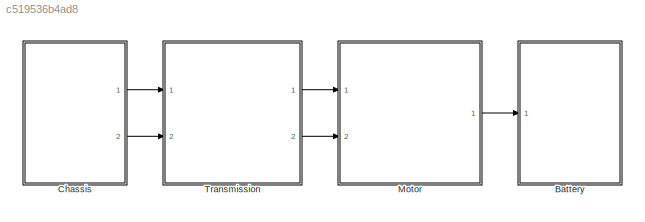
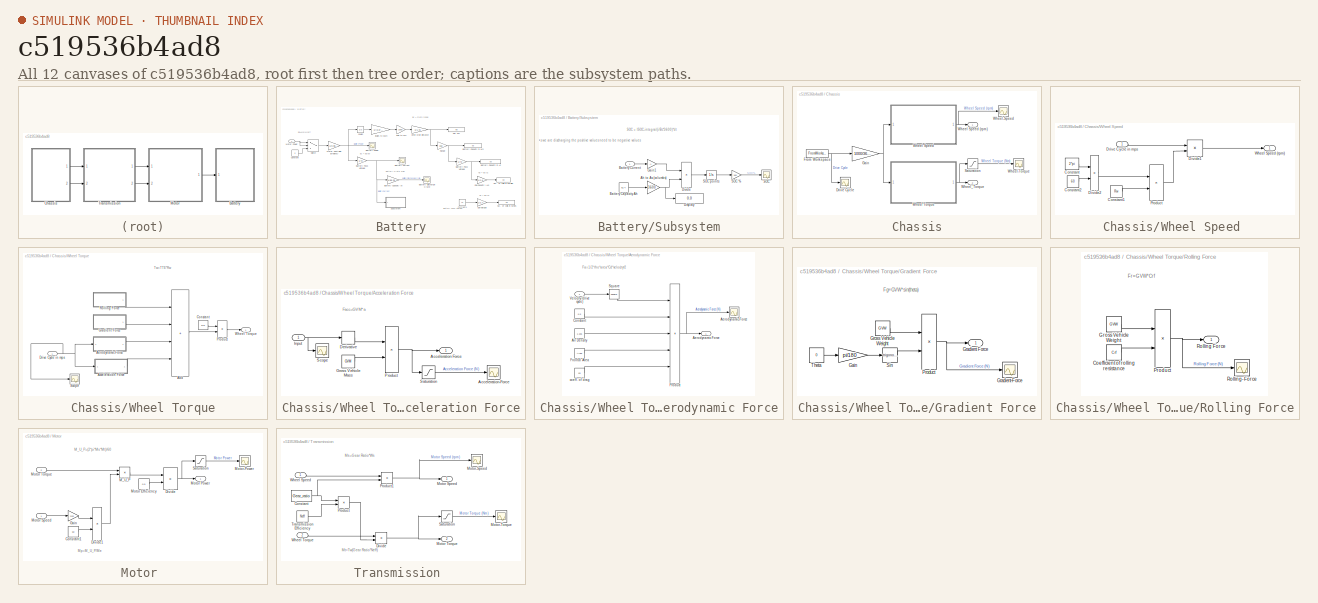
[diagram: thumbnail index - all 12 canvases of the model, root first then tree order]
MODEL slx_c519536b4ad8
KIND model
CONFIG AbsTol = auto
CONFIG EnableMultiTasking = off
CONFIG FixedStep = auto
CONFIG MaxStep = 1e-3
CONFIG MinStep = auto
CONFIG RelTol = 1e-3
CONFIG SampleTimeConstraint = Unconstrained
CONFIG SolverName = ode45
CONFIG StartTime = 0.0
CONFIG StopTime = 1180
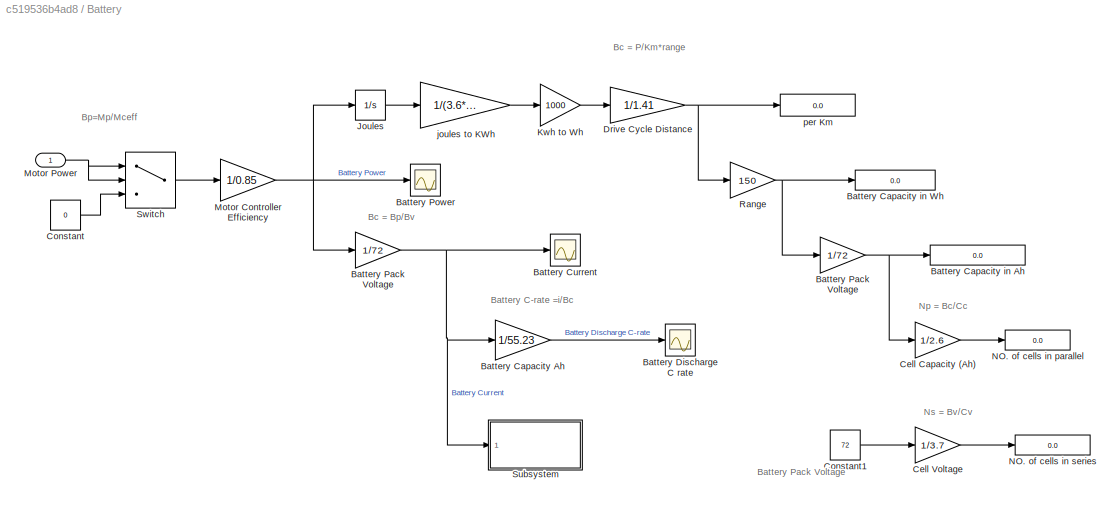
BLOCK [SubSystem] Battery
  Ports = [1]
  RequestExecContextInheritance = off
BLOCK [Gain] Battery/Battery Capacity Ah
  Gain = 1/55.23
BLOCK [Display] Battery/Battery Capacity in Ah
  Decimation = 1
  Format = long
  Ports = [1]
BLOCK [Display] Battery/Battery Capacity in Wh
  Decimation = 1
  Ports = [1]
BLOCK [Scope] Battery/Battery Current
  Floating = off
  NumInputPorts = 1
  Ports = [1]
  ScopeSpecificationString = Simulink.scopes.TimeScopeBlockCfg('CurrentConfiguration', extmgr.ConfigurationSet(extmgr.Configuration('Core','General UI',true,'FigureColor',[1 1 1]),extmgr.Configuration('Core','Source UI',true),extmgr.Configuration('Sources','WiredSimulink',true,'DataLoggingVariableName','ScopeData2'),extmgr.Configuration('Visuals','Time Domain',true,'SerializedDisplays',{struct('MinYLimReal','-32.265','MaxYLim...<+1764ch>
BLOCK [Scope] Battery/Battery Discharge C rate
  Floating = off
  NameLocation = right
  NumInputPorts = 1
  Ports = [1]
  ScopeSpecificationString = Simulink.scopes.TimeScopeBlockCfg('CurrentConfiguration', extmgr.ConfigurationSet(extmgr.Configuration('Core','General UI',true,'FigureColor',[1 1 1]),extmgr.Configuration('Core','Source UI',true),extmgr.Configuration('Sources','WiredSimulink',true),extmgr.Configuration('Visuals','Time Domain',true,'SerializedDisplays',{struct('MinYLimReal','-0.58419','MaxYLimReal','5.25774','YLabelReal','','MinYL...<+1727ch>
BLOCK [Gain] Battery/Battery Pack Voltage
  Gain = 1/72
BLOCK [Gain] Battery/Battery Pack Voltage 
  Gain = 1/72
BLOCK [Scope] Battery/Battery Power
  Floating = off
  NumInputPorts = 1
  Ports = [1]
  ScopeSpecificationString = Simulink.scopes.TimeScopeBlockCfg('CurrentConfiguration', extmgr.ConfigurationSet(extmgr.Configuration('Core','General UI',true,'FigureColor',[1 1 1]),extmgr.Configuration('Core','Source UI',true),extmgr.Configuration('Sources','WiredSimulink',true,'DataLoggingVariableName','ScopeData1'),extmgr.Configuration('Visuals','Time Domain',true,'SerializedDisplays',{struct('MinYLimReal','-2323.07984','Max...<+1823ch>
BLOCK [Gain] Battery/Cell Capacity (Ah)
  Gain = 1/2.6
BLOCK [Gain] Battery/Cell Voltage 
  Gain = 1/3.7
BLOCK [Constant] Battery/Constant
  Value = 0
BLOCK [Constant] Battery/Constant1
  Value = 72
BLOCK [Gain] Battery/Drive Cycle Distance
  Gain = 1/1.41
BLOCK [Integrator] Battery/Joules 
  InitialCondition = 1
  Ports = [1, 1]
BLOCK [Gain] Battery/Kwh to Wh
  Gain = 1000
BLOCK [Gain] Battery/Motor Controller Efficiency
  Gain = 1/0.85
BLOCK [Inport] Battery/Motor Power
BLOCK [Display] Battery/NO. of cells in parallel
  Decimation = 1
  Ports = [1]
BLOCK [Display] Battery/NO. of cells in series
  Decimation = 1
  Ports = [1]
BLOCK [Gain] Battery/Range
  Gain = 150
BLOCK [SubSystem] Battery/Subsystem
  Ports = [1]
  RequestExecContextInheritance = off
BLOCK [Gain] Battery/Subsystem/Ah to As (columbs)
  Gain = 3600
BLOCK [Constant] Battery/Subsystem/Battery Capacity Ah
  Value = 62.4
BLOCK [Inport] Battery/Subsystem/Battery Current
BLOCK [Display] Battery/Subsystem/Display
  Decimation = 1
  Format = decimal (Stored Integer)
  Ports = [1]
BLOCK [Product] Battery/Subsystem/Divide
  Inputs = */
  Ports = [2, 1]
BLOCK [Gain] Battery/Subsystem/Gain1
  Gain = -1
BLOCK [Scope] Battery/Subsystem/SOC
  Floating = off
  NumInputPorts = 1
  Ports = [1]
  ScopeSpecificationString = Simulink.scopes.TimeScopeBlockCfg('CurrentConfiguration', extmgr.ConfigurationSet(extmgr.Configuration('Core','General UI',true,'FigureColor',[1 1 1]),extmgr.Configuration('Core','Source UI',true),extmgr.Configuration('Sources','WiredSimulink',true,'DataLoggingVariableName','ScopeData1'),extmgr.Configuration('Visuals','Time Domain',true,'SerializedDisplays',{struct('MinYLimReal','77.52207','MaxYLi...<+1750ch>
BLOCK [Gain] Battery/Subsystem/SOC %
  Gain = 100
BLOCK [Integrator] Battery/Subsystem/SOC points
  InitialCondition = 1
  Ports = [1, 1]
BLOCK [Switch] Battery/Switch
  InputSameDT = off
  SaturateOnIntegerOverflow = off
BLOCK [Gain] Battery/joules to KWh
  Gain = 1/(3.6*10^6)
BLOCK [Display] Battery/per Km
  Decimation = 1
  Ports = [1]
BLOCK [SubSystem] Chassis
  Ports = [0, 2]
  RequestExecContextInheritance = off
BLOCK [Scope] Chassis/Drive Cycle
  Floating = off
  NumInputPorts = 1
  Ports = [1]
  ScopeSpecificationString = Simulink.scopes.TimeScopeBlockCfg('CurrentConfiguration', extmgr.ConfigurationSet(extmgr.Configuration('Core','General UI',true,'FigureColor',[1 1 1]),extmgr.Configuration('Core','Source UI',true),extmgr.Configuration('Sources','WiredSimulink',true,'DataLoggingVariableName','ScopeData1'),extmgr.Configuration('Visuals','Time Domain',true,'SerializedDisplays',{struct('MinYLimReal','8.31608','MaxYLim...<+1795ch>
BLOCK [FromWorkspace] Chassis/From Workspace
  VariableName = unnamed
BLOCK [Gain] Chassis/Gain
  Gain = 1000/3600
BLOCK [Saturate] Chassis/Saturation
  LowerLimit = 0
  UpperLimit = inf
BLOCK [SubSystem] Chassis/Wheel Speed 
  Ports = [1, 1]
  RequestExecContextInheritance = off
BLOCK [Outport] Chassis/Wheel Speed (rpm)
BLOCK [Constant] Chassis/Wheel Speed /Constant
  Value = 2*pi
BLOCK [Constant] Chassis/Wheel Speed /Constant1
  Value = Rw
BLOCK [Constant] Chassis/Wheel Speed /Constant2
  Value = 60
BLOCK [Product] Chassis/Wheel Speed /Divide1
  Inputs = */
  Ports = [2, 1]
BLOCK [Product] Chassis/Wheel Speed /Divide2
  Inputs = */
  Ports = [2, 1]
BLOCK [Inport] Chassis/Wheel Speed /Drive Cycle in mps
BLOCK [Product] Chassis/Wheel Speed /Product
  Ports = [2, 1]
BLOCK [Outport] Chassis/Wheel Speed /Wheel Speed (rpm)
BLOCK [SubSystem] Chassis/Wheel Torque
  Ports = [1, 1]
  RequestExecContextInheritance = off
BLOCK [SubSystem] Chassis/Wheel Torque/Acceleration Force
  Ports = [1, 1]
  RequestExecContextInheritance = off
  ShowPortLabels = none
BLOCK [Outport] Chassis/Wheel Torque/Acceleration Force/Acceleration Force
BLOCK [Scope] Chassis/Wheel Torque/Acceleration Force/Acceleration-Force
  Floating = off
  NumInputPorts = 1
  Ports = [1]
  ScopeSpecificationString = Simulink.scopes.TimeScopeBlockCfg('CurrentConfiguration', extmgr.ConfigurationSet(extmgr.Configuration('Core','General UI',true,'FigureColor',[1 1 1],'DisplayFullSourceName',true),extmgr.Configuration('Core','Source UI',true),extmgr.Configuration('Sources','WiredSimulink',true,'DataLoggingVariableName','ScopeData3'),extmgr.Configuration('Visuals','Time Domain',true,'SerializedDisplays',{struct('Mi...<+1835ch>
BLOCK [Derivative] Chassis/Wheel Torque/Acceleration Force/Derivative
  CoefficientInTFapproximation = 0
BLOCK [Constant] Chassis/Wheel Torque/Acceleration Force/Gross Vehicle Mass
  Value = GVM
BLOCK [Inport] Chassis/Wheel Torque/Acceleration Force/Input
BLOCK [Product] Chassis/Wheel Torque/Acceleration Force/Product
  Ports = [2, 1]
BLOCK [Saturate] Chassis/Wheel Torque/Acceleration Force/Saturation
  LowerLimit = 0
  UpperLimit = inf
BLOCK [Scope] Chassis/Wheel Torque/Acceleration Force/Scope
  Floating = off
  NumInputPorts = 1
  Ports = [1]
  ScopeSpecificationString = Simulink.scopes.TimeScopeBlockCfg('CurrentConfiguration', extmgr.ConfigurationSet(extmgr.Configuration('Core','General UI',true),extmgr.Configuration('Core','Source UI',true),extmgr.Configuration('Sources','WiredSimulink',true,'DataLoggingVariableName','ScopeData3'),extmgr.Configuration('Visuals','Time Domain',true,'SerializedDisplays',{struct('MinYLimReal','2.64239','MaxYLimReal','17.88532','YLab...<+1410ch>
BLOCK [Sum] Chassis/Wheel Torque/Add
  IconShape = rectangular
  Inputs = ++++
  Ports = [4, 1]
BLOCK [SubSystem] Chassis/Wheel Torque/Aerodynamic Force
  Ports = [1, 1]
  RequestExecContextInheritance = off
  ShowPortLabels = none
BLOCK [Outport] Chassis/Wheel Torque/Aerodynamic Force/Aerodynamic Force
BLOCK [Scope] Chassis/Wheel Torque/Aerodynamic Force/Aerodynamic-Force
  Floating = off
  NumInputPorts = 1
  Ports = [1]
  ScopeSpecificationString = Simulink.scopes.TimeScopeBlockCfg('CurrentConfiguration', extmgr.ConfigurationSet(extmgr.Configuration('Core','General UI',true,'FigureColor',[1 1 1],'DisplayFullSourceName',true),extmgr.Configuration('Core','Source UI',true),extmgr.Configuration('Sources','WiredSimulink',true,'DataLoggingVariableName','ScopeData1'),extmgr.Configuration('Visuals','Time Domain',true,'SerializedDisplays',{struct('Mi...<+14169ch>
BLOCK [Constant] Chassis/Wheel Torque/Aerodynamic Force/Air Density
  Value = 1.225
BLOCK [Constant] Chassis/Wheel Torque/Aerodynamic Force/Constant
  Value = 0.5
BLOCK [Constant] Chassis/Wheel Torque/Aerodynamic Force/Frontal Area
  Value = Area
BLOCK [Product] Chassis/Wheel Torque/Aerodynamic Force/Product
  Inputs = 5
  Ports = [5, 1]
BLOCK [Math] Chassis/Wheel Torque/Aerodynamic Force/Square
  Operator = square
  Ports = [1, 1]
BLOCK [Inport] Chassis/Wheel Torque/Aerodynamic Force/Velocity (drive cycle)
BLOCK [Constant] Chassis/Wheel Torque/Aerodynamic Force/coeff. of drag
  Value = cd
BLOCK [Constant] Chassis/Wheel Torque/Constant
  Value = Rw
BLOCK [Inport] Chassis/Wheel Torque/Drive Cycle in mps
BLOCK [SubSystem] Chassis/Wheel Torque/Gradient Force
  Ports = [0, 1]
  RequestExecContextInheritance = off
  ShowPortLabels = none
  TreatAsAtomicUnit = on
BLOCK [Gain] Chassis/Wheel Torque/Gradient Force/Gain
  Gain = pi/180
BLOCK [Outport] Chassis/Wheel Torque/Gradient Force/Gradient Force
BLOCK [Scope] Chassis/Wheel Torque/Gradient Force/Gradient-Force
  Floating = off
  NumInputPorts = 1
  Ports = [1]
  ScopeSpecificationString = Simulink.scopes.TimeScopeBlockCfg('CurrentConfiguration', extmgr.ConfigurationSet(extmgr.Configuration('Core','General UI',true,'FigureColor',[1 1 1]),extmgr.Configuration('Core','Source UI',true),extmgr.Configuration('Sources','WiredSimulink',true,'DataLoggingVariableName','ScopeData2'),extmgr.Configuration('Visuals','Time Domain',true,'SerializedDisplays',{struct('MinYLimReal','-1.00000','MaxYLi...<+1783ch>
BLOCK [Constant] Chassis/Wheel Torque/Gradient Force/Gross Vehicle Weight
  Value = GVW
BLOCK [Product] Chassis/Wheel Torque/Gradient Force/Product
  Ports = [2, 1]
BLOCK [Trigonometry] Chassis/Wheel Torque/Gradient Force/Sin
  Ports = [1, 1]
BLOCK [Constant] Chassis/Wheel Torque/Gradient Force/Theta
  Value = 0
BLOCK [Product] Chassis/Wheel Torque/Product
  Ports = [2, 1]
BLOCK [SubSystem] Chassis/Wheel Torque/Rolling Force
  Ports = [0, 1]
  RequestExecContextInheritance = off
  ShowPortLabels = none
  TreatAsAtomicUnit = on
BLOCK [Constant] Chassis/Wheel Torque/Rolling Force/Coefficient of rolling resistance
  Value = Crf
BLOCK [Constant] Chassis/Wheel Torque/Rolling Force/Gross Vehicle Weight
  Value = GVW
BLOCK [Product] Chassis/Wheel Torque/Rolling Force/Product
  Ports = [2, 1]
BLOCK [Outport] Chassis/Wheel Torque/Rolling Force/Rolling Force
BLOCK [Scope] Chassis/Wheel Torque/Rolling Force/Rolling-Force
  Floating = off
  NumInputPorts = 1
  Ports = [1]
  ScopeSpecificationString = Simulink.scopes.TimeScopeBlockCfg('CurrentConfiguration', extmgr.ConfigurationSet(extmgr.Configuration('Core','General UI',true,'FigureColor',[1 1 1]),extmgr.Configuration('Core','Source UI',true),extmgr.Configuration('Sources','WiredSimulink',true,'DataLoggingVariableName','ScopeData1'),extmgr.Configuration('Visuals','Time Domain',true,'SerializedDisplays',{struct('MinYLimReal','29.7305','MaxYLim...<+1762ch>
BLOCK [Scope] Chassis/Wheel Torque/Scope
  Floating = off
  NumInputPorts = 1
  Ports = [1]
  ScopeSpecificationString = Simulink.scopes.TimeScopeBlockCfg('CurrentConfiguration', extmgr.ConfigurationSet(extmgr.Configuration('Core','General UI',true),extmgr.Configuration('Core','Source UI',true),extmgr.Configuration('Sources','WiredSimulink',true,'DataLoggingVariableName','ScopeData2'),extmgr.Configuration('Visuals','Time Domain',true,'SerializedDisplays',{struct('MinYLimReal','2.64239','MaxYLimReal','17.88532','YLab...<+1423ch>
BLOCK [Outport] Chassis/Wheel Torque/Wheel Torque
BLOCK [Scope] Chassis/Wheel-Speed
  Floating = off
  NumInputPorts = 1
  Ports = [1]
  ScopeSpecificationString = Simulink.scopes.TimeScopeBlockCfg('CurrentConfiguration', extmgr.ConfigurationSet(extmgr.Configuration('Core','General UI',true,'FigureColor',[1 1 1]),extmgr.Configuration('Core','Source UI',true),extmgr.Configuration('Sources','WiredSimulink',true,'DataLoggingVariableName','ScopeData4'),extmgr.Configuration('Visuals','Time Domain',true,'SerializedDisplays',{struct('MinYLimReal','86.84647','MaxYLi...<+1753ch>
BLOCK [Scope] Chassis/Wheel-Torque
  Floating = off
  NumInputPorts = 1
  Ports = [1]
  ScopeSpecificationString = Simulink.scopes.TimeScopeBlockCfg('CurrentConfiguration', extmgr.ConfigurationSet(extmgr.Configuration('Core','General UI',true,'FigureColor',[1 1 1]),extmgr.Configuration('Core','Source UI',true),extmgr.Configuration('Sources','WiredSimulink',true,'DataLoggingVariableName','ScopeData1'),extmgr.Configuration('Visuals','Time Domain',true,'SerializedDisplays',{struct('MinYLimReal','-15.83631','MaxYL...<+1753ch>
BLOCK [Outport] Chassis/Wheel_Torque
  Port = 2
BLOCK [SubSystem] Motor 
  Ports = [2, 1]
  RequestExecContextInheritance = off
BLOCK [Constant] Motor /Constant1
  Value = 60
BLOCK [Product] Motor /Divide
  Inputs = */
  Ports = [2, 1]
BLOCK [Product] Motor /Divide1
  Inputs = */
  Ports = [2, 1]
BLOCK [Gain] Motor /Gain
  Gain = 2*pi
BLOCK [Product] Motor /M_U_P
  NameLocation = top
  Ports = [2, 1]
BLOCK [Constant] Motor /Motor Efficiency
  Value = 0.9
BLOCK [Outport] Motor /Motor Power
BLOCK [Inport] Motor /Motor Speed
BLOCK [Inport] Motor /Motor Torque
  Port = 2
BLOCK [Scope] Motor /Motor-Power
  Floating = off
  NumInputPorts = 1
  Ports = [1]
  ScopeSpecificationString = Simulink.scopes.TimeScopeBlockCfg('CurrentConfiguration', extmgr.ConfigurationSet(extmgr.Configuration('Core','General UI',true,'FigureColor',[1 1 1],'DisplayFullSourceName',true),extmgr.Configuration('Core','Source UI',true),extmgr.Configuration('Sources','WiredSimulink',true,'DataLoggingVariableName','ScopeData1'),extmgr.Configuration('Visuals','Time Domain',true,'SerializedDisplays',{struct('Mi...<+1792ch>
BLOCK [Saturate] Motor /Saturation
  LowerLimit = 0
  UpperLimit = inf
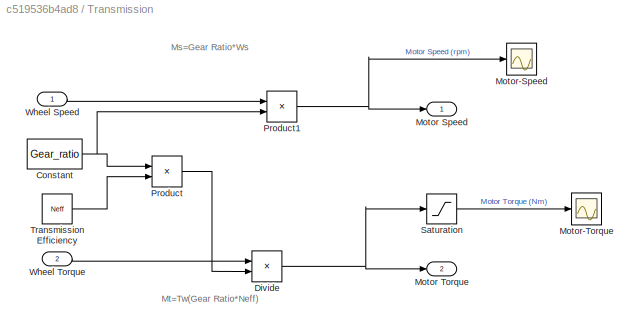
BLOCK [SubSystem] Transmission 
  Ports = [2, 2]
  RequestExecContextInheritance = off
BLOCK [Constant] Transmission /Constant
  Value = Gear_ratio
BLOCK [Product] Transmission /Divide
  Inputs = */
  Ports = [2, 1]
BLOCK [Outport] Transmission /Motor Speed
BLOCK [Outport] Transmission /Motor Torque
  Port = 2
BLOCK [Scope] Transmission /Motor-Speed
  Floating = off
  NumInputPorts = 1
  Ports = [1]
  ScopeSpecificationString = Simulink.scopes.TimeScopeBlockCfg('CurrentConfiguration', extmgr.ConfigurationSet(extmgr.Configuration('Core','General UI',true,'FigureColor',[1 1 1]),extmgr.Configuration('Core','Source UI',true),extmgr.Configuration('Sources','WiredSimulink',true,'DataLoggingVariableName','ScopeData5'),extmgr.Configuration('Visuals','Time Domain',true,'SerializedDisplays',{struct('MinYLimReal','260.5394','MaxYLi...<+1757ch>
BLOCK [Scope] Transmission /Motor-Torque
  Floating = off
  NumInputPorts = 1
  Ports = [1]
  ScopeSpecificationString = Simulink.scopes.TimeScopeBlockCfg('CurrentConfiguration', extmgr.ConfigurationSet(extmgr.Configuration('Core','General UI',true,'FigureColor',[1 1 1]),extmgr.Configuration('Core','Source UI',true),extmgr.Configuration('Sources','WiredSimulink',true,'DataLoggingVariableName','ScopeData1'),extmgr.Configuration('Visuals','Time Domain',true,'SerializedDisplays',{struct('MinYLimReal','-6.21032','MaxYLi...<+1763ch>
BLOCK [Product] Transmission /Product
  Ports = [2, 1]
BLOCK [Product] Transmission /Product1
  Ports = [2, 1]
BLOCK [Saturate] Transmission /Saturation
  LowerLimit = 0
  UpperLimit = inf
BLOCK [Constant] Transmission /Transmission Efficiency
  Value = Neff
BLOCK [Inport] Transmission /Wheel Speed
BLOCK [Inport] Transmission /Wheel Torque
  Port = 2
ANNOTATION Battery: Battery C-rate =i/Bc
ANNOTATION Battery: Bc = Bp/Bv
ANNOTATION Battery: Bc = P/Km*range
ANNOTATION Battery: Bp=Mp/Mceff
ANNOTATION Battery: Np = Bc/Cc
ANNOTATION Battery: Ns = Bv/Cv
ANNOTATION Battery: Battery Pack Voltage
ANNOTATION Battery/Subsystem: as we are discharging the positive values need to be negative values
ANNOTATION Battery/Subsystem: SOC = ISOC-integral(i/Bc*3600)*dt
ANNOTATION Chassis/Wheel Torque: Tw=TTE*Rw
ANNOTATION Chassis/Wheel Torque/Acceleration Force: Facc=GVM*a
ANNOTATION Chassis/Wheel Torque/Aerodynamic Force: Fa=1/2*rho*area*Cd*velocity^2
ANNOTATION Chassis/Wheel Torque/Gradient Force: Fg=GVW*sin(theta)
ANNOTATION Chassis/Wheel Torque/Rolling Force: Fr=GVW*Crf
ANNOTATION Motor : M_U_P=(2*pi*Ms*Mt)/60
ANNOTATION Motor : Mp=M_U_P/Me
ANNOTATION Transmission : Ms=Gear Ratio*Ws
ANNOTATION Transmission : Mt=Tw(Gear Ratio*Neff)
LINE Battery/Battery Capacity Ah:1 -> Battery/Battery Discharge C rate:1
NET Battery/Battery Pack Voltage :1 -> Battery/Battery Capacity Ah:1, Battery/Battery Current:1, Battery/Subsystem:1
NET Battery/Battery Pack Voltage:1 -> Battery/Battery Capacity in Ah:1, Battery/Cell Capacity (Ah):1
LINE Battery/Cell Capacity (Ah):1 -> Battery/NO. of cells in parallel:1
LINE Battery/Cell Voltage :1 -> Battery/NO. of cells in series:1
LINE Battery/Constant1:1 -> Battery/Cell Voltage :1
LINE Battery/Constant:1 -> Battery/Switch:3
NET Battery/Drive Cycle Distance:1 -> Battery/Range:1, Battery/per Km:1
LINE Battery/Joules :1 -> Battery/joules to KWh:1
LINE Battery/Kwh to Wh:1 -> Battery/Drive Cycle Distance:1
NET Battery/Motor Controller Efficiency:1 -> Battery/Battery Pack Voltage :1, Battery/Battery Power:1, Battery/Joules :1
NET Battery/Motor Power:1 -> Battery/Switch:1, Battery/Switch:2
NET Battery/Range:1 -> Battery/Battery Capacity in Wh:1, Battery/Battery Pack Voltage:1
NET Battery/Subsystem/Ah to As (columbs):1 -> Battery/Subsystem/Display:1, Battery/Subsystem/Divide:2
LINE Battery/Subsystem/Battery Capacity Ah:1 -> Battery/Subsystem/Ah to As (columbs):1
LINE Battery/Subsystem/Battery Current:1 -> Battery/Subsystem/Gain1:1
LINE Battery/Subsystem/Divide:1 -> Battery/Subsystem/SOC points:1
LINE Battery/Subsystem/Gain1:1 -> Battery/Subsystem/Divide:1
LINE Battery/Subsystem/SOC %:1 -> Battery/Subsystem/SOC:1
LINE Battery/Subsystem/SOC points:1 -> Battery/Subsystem/SOC %:1
LINE Battery/Switch:1 -> Battery/Motor Controller Efficiency:1
LINE Battery/joules to KWh:1 -> Battery/Kwh to Wh:1
NET Chassis/From Workspace:1 -> Chassis/Drive Cycle:1, Chassis/Gain:1
NET Chassis/Gain:1 -> Chassis/Wheel Speed :1, Chassis/Wheel Torque:1
LINE Chassis/Saturation:1 -> Chassis/Wheel-Torque:1
LINE Chassis/Wheel Speed /Constant1:1 -> Chassis/Wheel Speed /Product:2
LINE Chassis/Wheel Speed /Constant2:1 -> Chassis/Wheel Speed /Divide2:2
LINE Chassis/Wheel Speed /Constant:1 -> Chassis/Wheel Speed /Divide2:1
LINE Chassis/Wheel Speed /Divide1:1 -> Chassis/Wheel Speed /Wheel Speed (rpm):1
LINE Chassis/Wheel Speed /Divide2:1 -> Chassis/Wheel Speed /Product:1
LINE Chassis/Wheel Speed /Drive Cycle in mps:1 -> Chassis/Wheel Speed /Divide1:1
LINE Chassis/Wheel Speed /Product:1 -> Chassis/Wheel Speed /Divide1:2
NET Chassis/Wheel Speed :1 -> Chassis/Wheel Speed (rpm):1, Chassis/Wheel-Speed:1
LINE Chassis/Wheel Torque/Acceleration Force/Derivative:1 -> Chassis/Wheel Torque/Acceleration Force/Product:1
LINE Chassis/Wheel Torque/Acceleration Force/Gross Vehicle Mass:1 -> Chassis/Wheel Torque/Acceleration Force/Product:2
NET Chassis/Wheel Torque/Acceleration Force/Input:1 -> Chassis/Wheel Torque/Acceleration Force/Derivative:1, Chassis/Wheel Torque/Acceleration Force/Scope:1
NET Chassis/Wheel Torque/Acceleration Force/Product:1 -> Chassis/Wheel Torque/Acceleration Force/Acceleration Force:1, Chassis/Wheel Torque/Acceleration Force/Saturation:1
LINE Chassis/Wheel Torque/Acceleration Force/Saturation:1 -> Chassis/Wheel Torque/Acceleration Force/Acceleration-Force:1
LINE Chassis/Wheel Torque/Acceleration Force:1 -> Chassis/Wheel Torque/Add:4
LINE Chassis/Wheel Torque/Add:1 -> Chassis/Wheel Torque/Product:2
LINE Chassis/Wheel Torque/Aerodynamic Force/Air Density:1 -> Chassis/Wheel Torque/Aerodynamic Force/Product:3
LINE Chassis/Wheel Torque/Aerodynamic Force/Constant:1 -> Chassis/Wheel Torque/Aerodynamic Force/Product:2
LINE Chassis/Wheel Torque/Aerodynamic Force/Frontal Area:1 -> Chassis/Wheel Torque/Aerodynamic Force/Product:4
NET Chassis/Wheel Torque/Aerodynamic Force/Product:1 -> Chassis/Wheel Torque/Aerodynamic Force/Aerodynamic Force:1, Chassis/Wheel Torque/Aerodynamic Force/Aerodynamic-Force:1
LINE Chassis/Wheel Torque/Aerodynamic Force/Square:1 -> Chassis/Wheel Torque/Aerodynamic Force/Product:1
LINE Chassis/Wheel Torque/Aerodynamic Force/Velocity (drive cycle):1 -> Chassis/Wheel Torque/Aerodynamic Force/Square:1
LINE Chassis/Wheel Torque/Aerodynamic Force/coeff. of drag:1 -> Chassis/Wheel Torque/Aerodynamic Force/Product:5
LINE Chassis/Wheel Torque/Aerodynamic Force:1 -> Chassis/Wheel Torque/Add:3
LINE Chassis/Wheel Torque/Constant:1 -> Chassis/Wheel Torque/Product:1
NET Chassis/Wheel Torque/Drive Cycle in mps:1 -> Chassis/Wheel Torque/Acceleration Force:1, Chassis/Wheel Torque/Aerodynamic Force:1, Chassis/Wheel Torque/Scope:1
LINE Chassis/Wheel Torque/Gradient Force/Gain:1 -> Chassis/Wheel Torque/Gradient Force/Sin:1
LINE Chassis/Wheel Torque/Gradient Force/Gross Vehicle Weight:1 -> Chassis/Wheel Torque/Gradient Force/Product:1
NET Chassis/Wheel Torque/Gradient Force/Product:1 -> Chassis/Wheel Torque/Gradient Force/Gradient Force:1, Chassis/Wheel Torque/Gradient Force/Gradient-Force:1
LINE Chassis/Wheel Torque/Gradient Force/Sin:1 -> Chassis/Wheel Torque/Gradient Force/Product:2
LINE Chassis/Wheel Torque/Gradient Force/Theta:1 -> Chassis/Wheel Torque/Gradient Force/Gain:1
LINE Chassis/Wheel Torque/Gradient Force:1 -> Chassis/Wheel Torque/Add:2
LINE Chassis/Wheel Torque/Product:1 -> Chassis/Wheel Torque/Wheel Torque:1
LINE Chassis/Wheel Torque/Rolling Force/Coefficient of rolling resistance:1 -> Chassis/Wheel Torque/Rolling Force/Product:2
LINE Chassis/Wheel Torque/Rolling Force/Gross Vehicle Weight:1 -> Chassis/Wheel Torque/Rolling Force/Product:1
NET Chassis/Wheel Torque/Rolling Force/Product:1 -> Chassis/Wheel Torque/Rolling Force/Rolling Force:1, Chassis/Wheel Torque/Rolling Force/Rolling-Force:1
LINE Chassis/Wheel Torque/Rolling Force:1 -> Chassis/Wheel Torque/Add:1
NET Chassis/Wheel Torque:1 -> Chassis/Saturation:1, Chassis/Wheel_Torque:1
LINE Chassis:1 -> Transmission :1
LINE Chassis:2 -> Transmission :2
LINE Motor /Constant1:1 -> Motor /Divide1:2
LINE Motor /Divide1:1 -> Motor /M_U_P:2
NET Motor /Divide:1 -> Motor /Motor Power:1, Motor /Saturation:1
LINE Motor /Gain:1 -> Motor /Divide1:1
LINE Motor /M_U_P:1 -> Motor /Divide:1
LINE Motor /Motor Efficiency:1 -> Motor /Divide:2
LINE Motor /Motor Speed:1 -> Motor /Gain:1
LINE Motor /Motor Torque:1 -> Motor /M_U_P:1
LINE Motor /Saturation:1 -> Motor /Motor-Power:1
LINE Motor :1 -> Battery:1
NET Transmission /Constant:1 -> Transmission /Product1:2, Transmission /Product:1
NET Transmission /Divide:1 -> Transmission /Motor Torque:1, Transmission /Saturation:1
NET Transmission /Product1:1 -> Transmission /Motor Speed:1, Transmission /Motor-Speed:1
LINE Transmission /Product:1 -> Transmission /Divide:2
LINE Transmission /Saturation:1 -> Transmission /Motor-Torque:1
LINE Transmission /Transmission Efficiency:1 -> Transmission /Product:2
LINE Transmission /Wheel Speed:1 -> Transmission /Product1:1
LINE Transmission /Wheel Torque:1 -> Transmission /Divide:1
LINE Transmission :1 -> Motor :1
LINE Transmission :2 -> Motor :2
note: NET lines group one-source signal fan-out (src -> all destinations, sorted); 1:1 wires keep LINE
